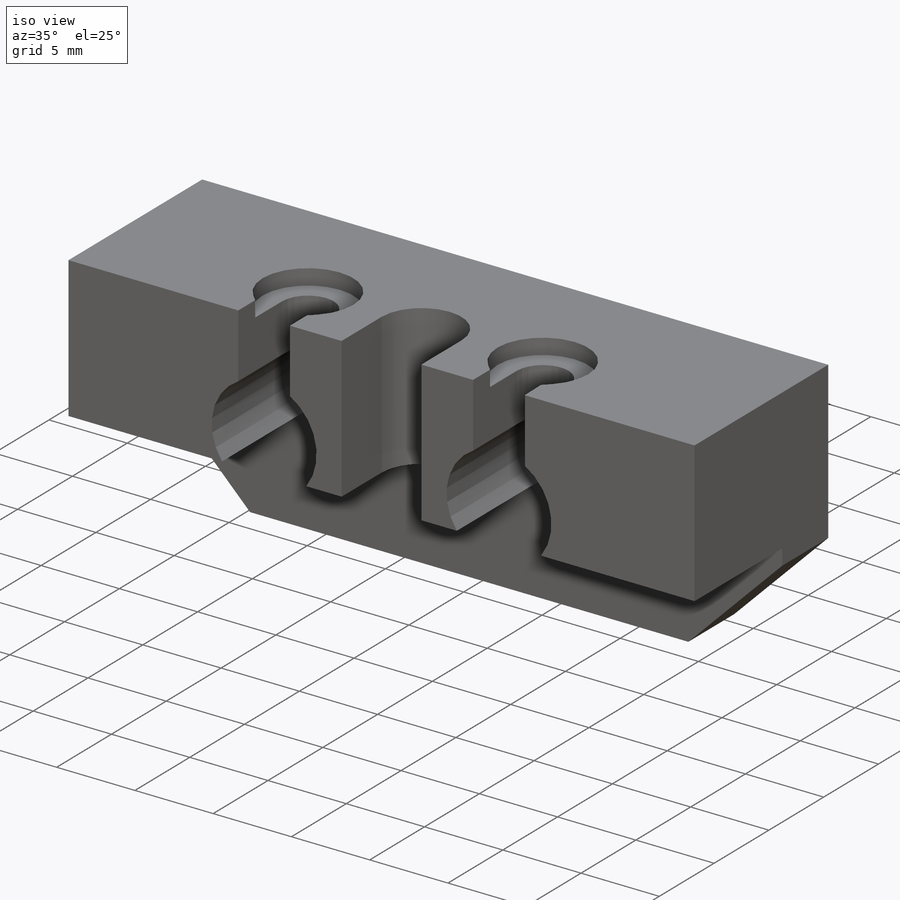
[diagram: iso view]
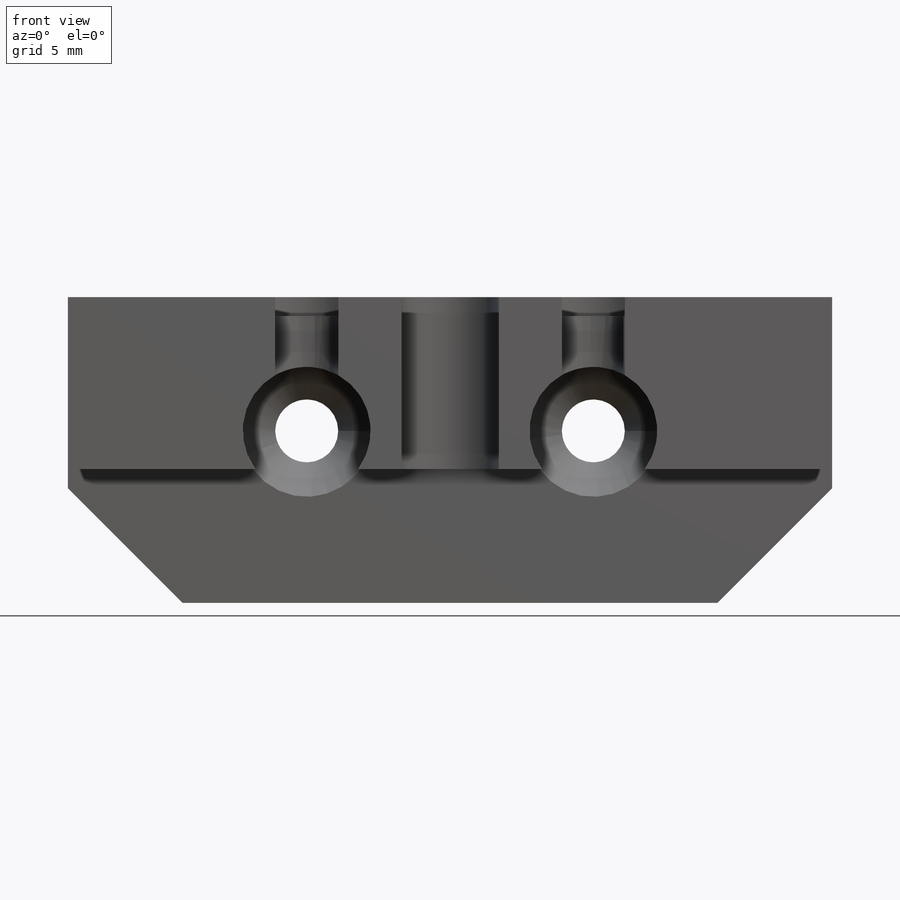
[diagram: front view]
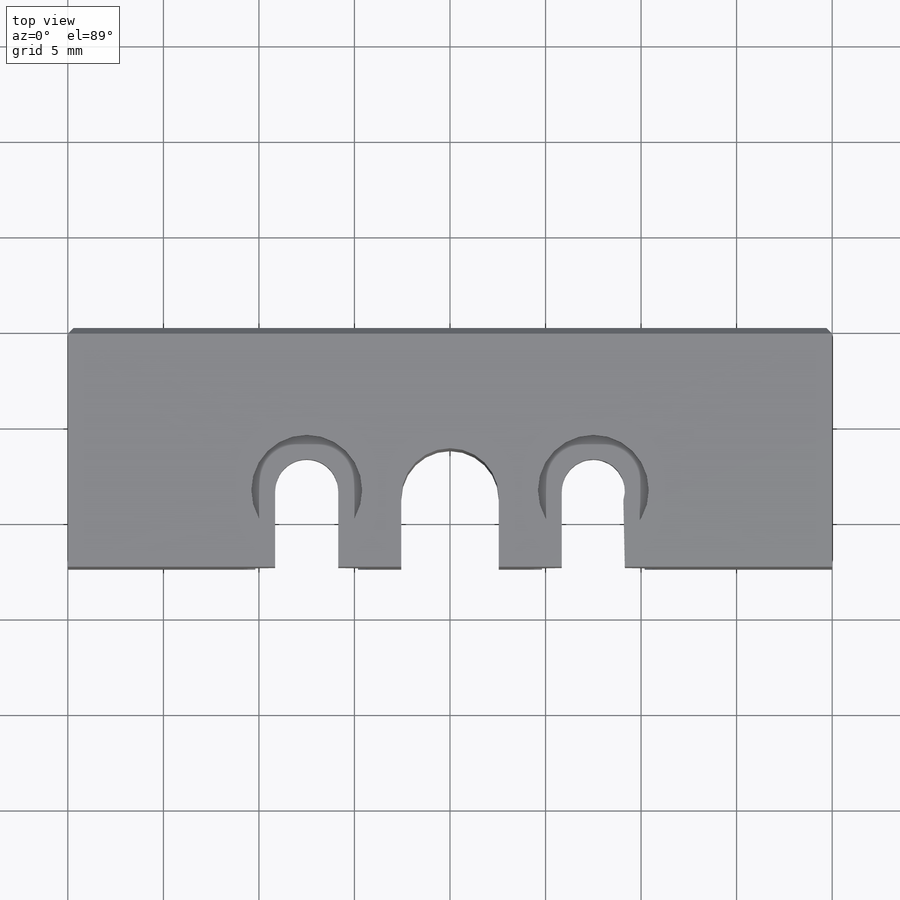
[diagram: top view]
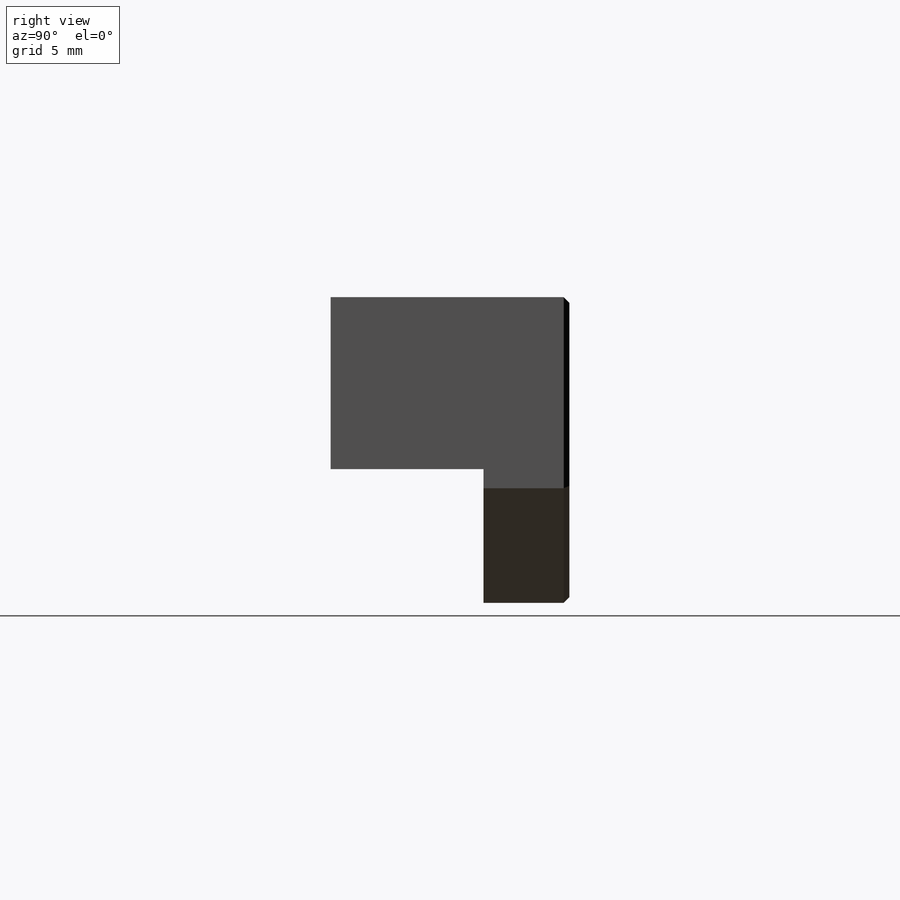
[diagram: right view]
SOLIDWORKS PART (.sldprt)
format: sldprt  version: not decoded by parser v0  size: 383,488 bytes
history: native  units: mm
features: sketch x8, cut_extrude x7, chamfer x4, material x1, extrude x1 (+13 scaffold rows collapsed)
feature tree (34):
  scaffold x13  (default folders/planes/origin — collapsed)
  material  "Material <not specified>"
  sketch  "Sketch1"  dims[D1=20.0mm D2=40.0mm D3=16.0mm]
  extrude  "Boss-Extrude1"  Depth=12.5mm
  sketch  "Sketch2"  dims[c1.D1=1.65mm c1.D2=15.0mm c1.D3=7.0mm c2.D2=8.0mm c2.D4=15.0mm c2.D5=1.0mm c2.D6=32.0mm]
  cut_extrude  "Cut-Extrude1"  [1 undecoded]
  sketch  "Sketch5"  dims[D2=3.3mm D1=15.0mm D3=4.0mm]
  cut_extrude  "Cut-Extrude4"  [1 undecoded]
  sketch  "Sketch6"  dims[D1=9.0mm D2=4.5mm]
  cut_extrude  "Cut-Extrude5"  [1 undecoded]
  sketch  "Sketch7"  dims[D1=5.8mm]
  cut_extrude  "Cut-Extrude6"  Depth=1mm
  chamfer  "Chamfer4"  Distance=1.8mm Angle=45deg
  sketch  "Sketch8"  dims[D1=2.55mm D2=0.2mm]
  cut_extrude  "Cut-Extrude7"  [1 undecoded]
  sketch  "Sketch9"  dims[D1=6.7mm]
  cut_extrude  "Cut-Extrude8"  [1 undecoded]
  chamfer  "Chamfer5"  Distance=1.8mm Angle=45deg
  chamfer  "Chamfer6"  Distance=6mm Angle=45deg
  chamfer  "Chamfer7"  Distance=0.3mm Angle=45deg
  sketch  "Sketch10"  dims[D1=5.8mm]
  cut_extrude  "Cut-Extrude9"  Depth=0.5mm
decode coverage: 15 of 20 modeling features carry decoded parameters
note: 5 parameter values undecoded
summary: no parameter record found for 5 features
note: suppression state not decoded; provenance and decode notes live in map.json
